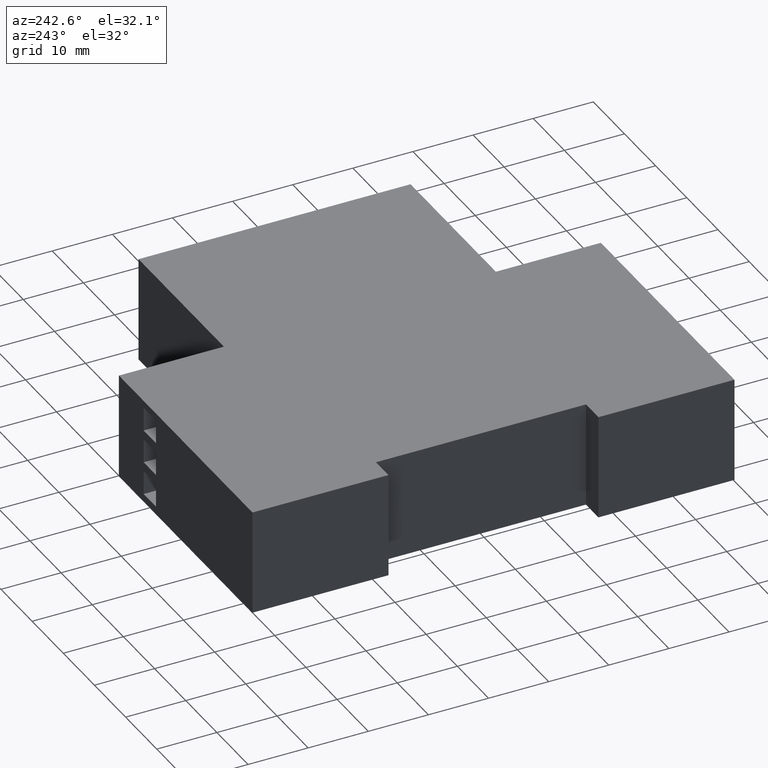
[diagram: clean part render]
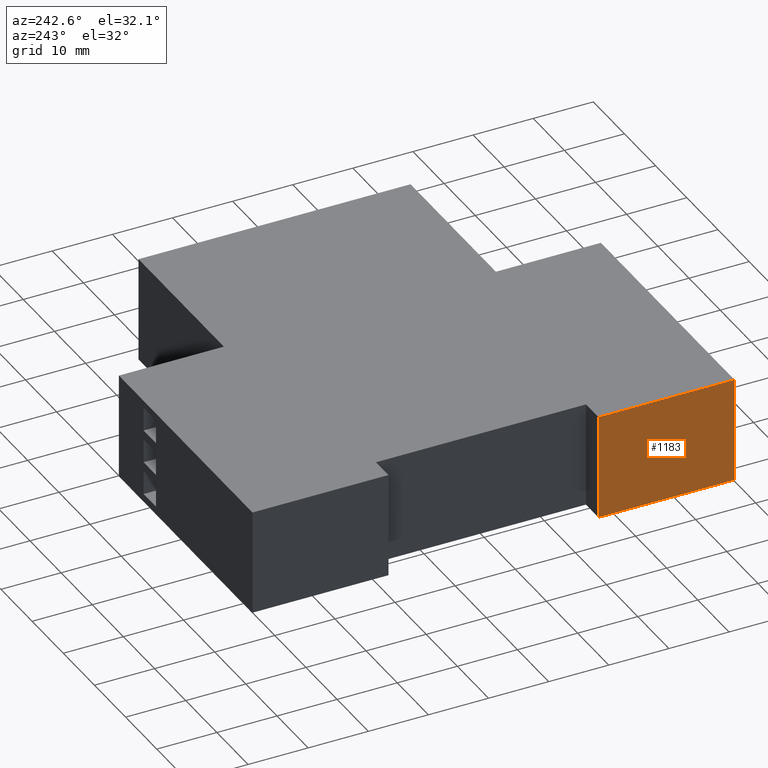
[diagram: same view with one face highlighted and labeled with its STEP entity id]
A machine part, auxiliary view. The second image highlights one B-rep face of the part: STEP entity #1183.
In plain terms, the highlighted planar face has unit normal (-1, 0, 0).
Its self-contained STEP definition (entity closure, byte-faithful):
#94=DIRECTION('',(0.E0,-1.E0,0.E0));
#95=VECTOR('',#94,8.90625E-1);
#96=CARTESIAN_POINT('',(-9.905434317903E-1,-2.217970613395E0,6.875E-1));
#97=LINE('',#96,#95);
#166=DIRECTION('',(0.E0,-1.E0,0.E0));
#167=VECTOR('',#166,8.90625E-1);
#168=CARTESIAN_POINT('',(-9.905434317903E-1,-2.217970613395E0,0.E0));
#169=LINE('',#168,#167);
#170=DIRECTION('',(0.E0,0.E0,-1.E0));
#171=VECTOR('',#170,6.875E-1);
#172=CARTESIAN_POINT('',(-9.905434317903E-1,-2.217970613395E0,6.875E-1));
#173=LINE('',#172,#171);
#178=DIRECTION('',(0.E0,0.E0,-1.E0));
#179=VECTOR('',#178,6.875E-1);
#180=CARTESIAN_POINT('',(-9.905434317903E-1,-3.108595613395E0,6.875E-1));
#181=LINE('',#180,#179);
#890=CARTESIAN_POINT('',(-9.905434317903E-1,-3.108595613395E0,6.875E-1));
#891=VERTEX_POINT('',#890);
#892=CARTESIAN_POINT('',(-9.905434317903E-1,-3.108595613395E0,0.E0));
#893=VERTEX_POINT('',#892);
#894=CARTESIAN_POINT('',(-9.905434317903E-1,-2.217970613395E0,6.875E-1));
#895=VERTEX_POINT('',#894);
#896=CARTESIAN_POINT('',(-9.905434317903E-1,-2.217970613395E0,0.E0));
#897=VERTEX_POINT('',#896);
#1171=CARTESIAN_POINT('',(-9.905434317903E-1,-3.108595613395E0,0.E0));
#1172=DIRECTION('',(-1.E0,0.E0,0.E0));
#1173=DIRECTION('',(0.E0,0.E0,1.E0));
#1174=AXIS2_PLACEMENT_3D('',#1171,#1172,#1173);
#1175=PLANE('',#1174);
#1176=ORIENTED_EDGE('',*,*,#1017,.T.);
#1178=ORIENTED_EDGE('',*,*,#1177,.T.);
#1179=ORIENTED_EDGE('',*,*,#1061,.F.);
#1180=ORIENTED_EDGE('',*,*,#1164,.F.);
#1181=EDGE_LOOP('',(#1176,#1178,#1179,#1180));
#1182=FACE_OUTER_BOUND('',#1181,.F.);
#1183=ADVANCED_FACE('',(#1182),#1175,.T.);
#1017=EDGE_CURVE('',#895,#891,#97,.T.);
#1061=EDGE_CURVE('',#897,#893,#169,.T.);
#1164=EDGE_CURVE('',#895,#897,#173,.T.);
#1177=EDGE_CURVE('',#891,#893,#181,.T.);